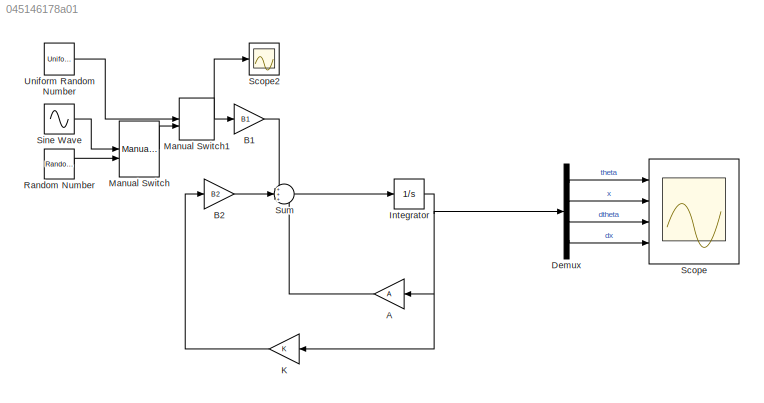
MODEL slx_045146178a01
KIND model
CONFIG AbsTol = auto
CONFIG EnableMultiTasking = off
CONFIG FixedStep = auto
CONFIG MaxStep = auto
CONFIG MinStep = auto
CONFIG RelTol = 1e-3
CONFIG SampleTimeConstraint = Unconstrained
CONFIG Solver = VariableStepAuto
CONFIG SolverName = VariableStepAuto
CONFIG StartTime = 0.0
CONFIG StopTime = 10.0
BLOCK [Gain] A
  Gain = A
  Multiplication = Matrix(K*u)
  NameLocation = top
BLOCK [Gain] B1
  Gain = B1
  Multiplication = Matrix(K*u)
BLOCK [Gain] B2
  Gain = B2
  Multiplication = Matrix(K*u)
BLOCK [Demux] Demux
  Ports = [1, 4]
BLOCK [Integrator] Integrator
  InitialCondition = x0
  Ports = [1, 1]
BLOCK [Gain] K
  Gain = K
  Multiplication = Matrix(K*u)
  NameLocation = top
BLOCK [ManualSwitch] Manual Switch
  NameLocation = top
BLOCK [ManualSwitch] Manual Switch1
  CurrentSetting = 0
  NameLocation = top
BLOCK [RandomNumber] Random Number
  SampleTime = 0.0001
BLOCK [Scope] Scope
  Floating = off
  NumInputPorts = 4
  Ports = [4]
  ScopeSpecificationString = Simulink.scopes.TimeScopeBlockCfg('CurrentConfiguration', extmgr.ConfigurationSet(extmgr.Configuration('Core','General UI',true,'FigureColor',[1 1 1]),extmgr.Configuration('Core','Source UI',true),extmgr.Configuration('Sources','WiredSimulink',true),extmgr.Configuration('Visuals','Time Domain',true,'SerializedDisplays',{struct('MinYLimReal','-0.42206','MaxYLimReal','0.60247','YLabelReal','','MinYL...<+4139ch>
BLOCK [Scope] Scope2
  Floating = off
  NumInputPorts = 1
  Ports = [1]
  ScopeSpecificationString = Simulink.scopes.TimeScopeBlockCfg('CurrentConfiguration', extmgr.ConfigurationSet(extmgr.Configuration('Core','General UI',true),extmgr.Configuration('Core','Source UI',true),extmgr.Configuration('Sources','WiredSimulink',true,'DataLoggingVariableName','ScopeData2'),extmgr.Configuration('Visuals','Time Domain',true,'SerializedDisplays',{struct('MinYLimReal','-2.5','MaxYLimReal','2.5','YLabelReal',...<+1349ch>
BLOCK [Sin] Sine Wave
  Amplitude = 2
  Frequency = 200
  Ports = [0, 1]
  SampleTime = 0
BLOCK [Sum] Sum
  Inputs = +++
  Ports = [3, 1]
BLOCK [UniformRandomNumber] Uniform Random Number
  Maximum = 2
  Minimum = -2
  SampleTime = 0.001
LINE A:1 -> Sum:3
LINE B1:1 -> Sum:1
LINE B2:1 -> Sum:2
LINE Demux:1 -> Scope:1
LINE Demux:2 -> Scope:2
LINE Demux:3 -> Scope:3
LINE Demux:4 -> Scope:4
NET Integrator:1 -> A:1, Demux:1, K:1
LINE K:1 -> B2:1
NET Manual Switch1:1 -> B1:1, Scope2:1
LINE Manual Switch:1 -> Manual Switch1:2
LINE Random Number:1 -> Manual Switch:2
LINE Sine Wave:1 -> Manual Switch:1
LINE Sum:1 -> Integrator:1
LINE Uniform Random Number:1 -> Manual Switch1:1
note: NET lines group one-source signal fan-out (src -> all destinations, sorted); 1:1 wires keep LINE
